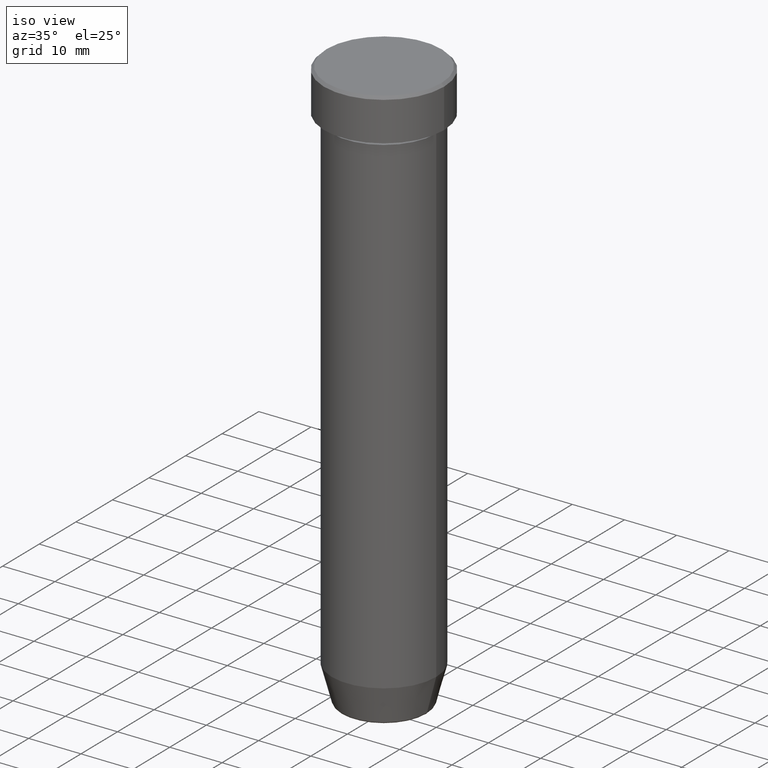
[diagram: clean part render]
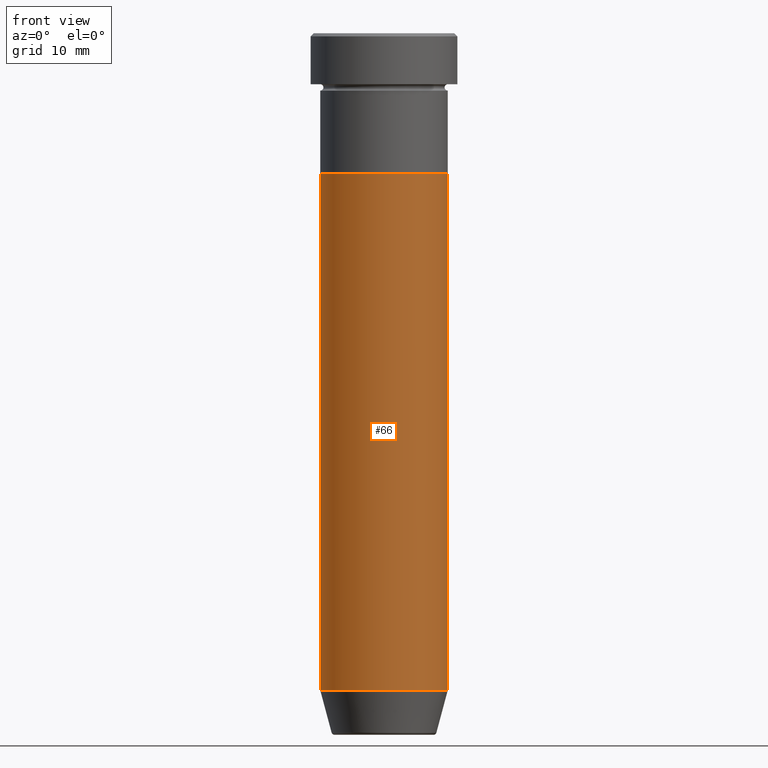
[diagram: tour spotlight — one face highlighted and labeled with its STEP entity id]
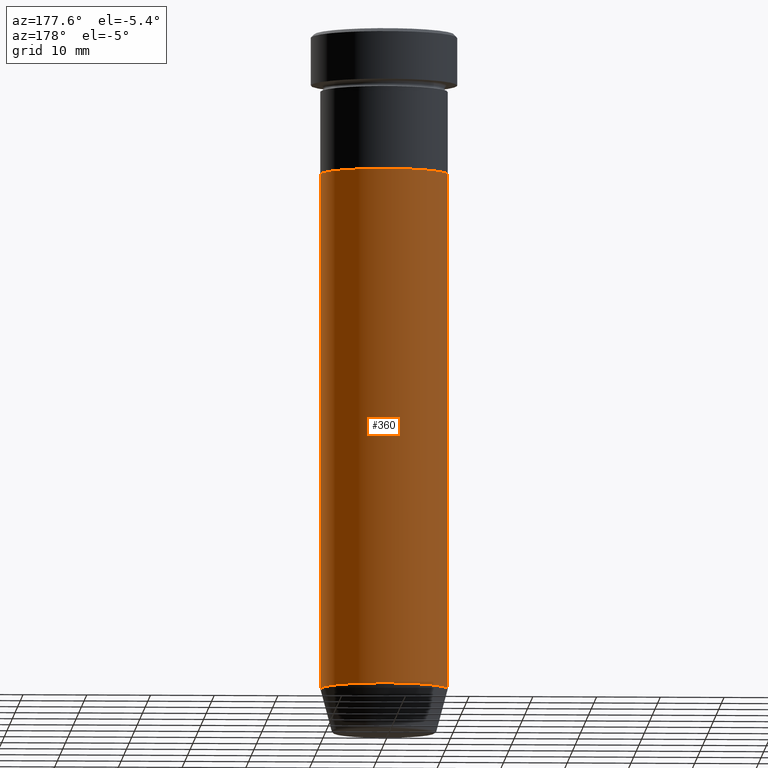
[diagram: tour spotlight — one face highlighted and labeled with its STEP entity id]
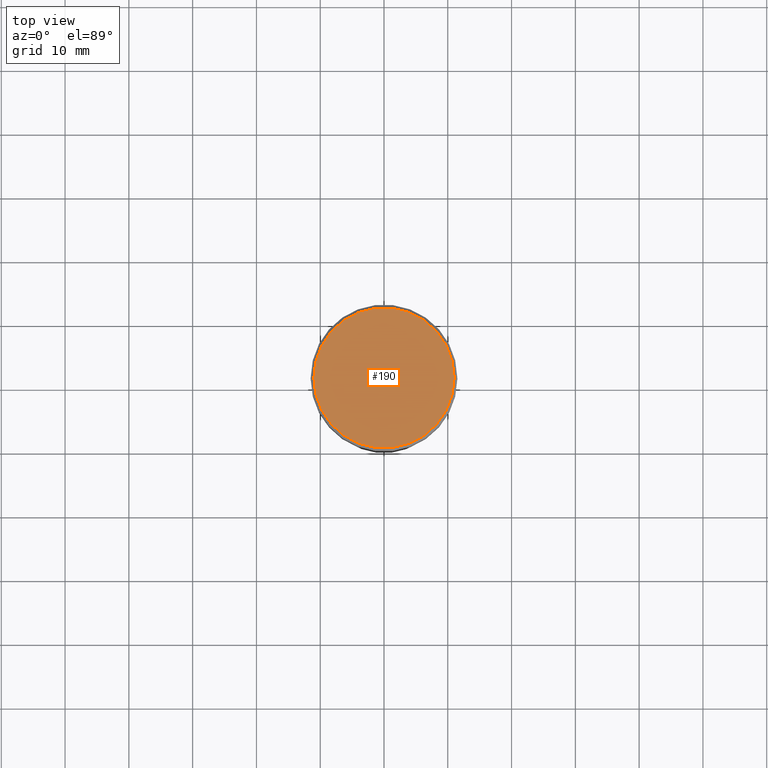
[diagram: tour spotlight — one face highlighted and labeled with its STEP entity id]
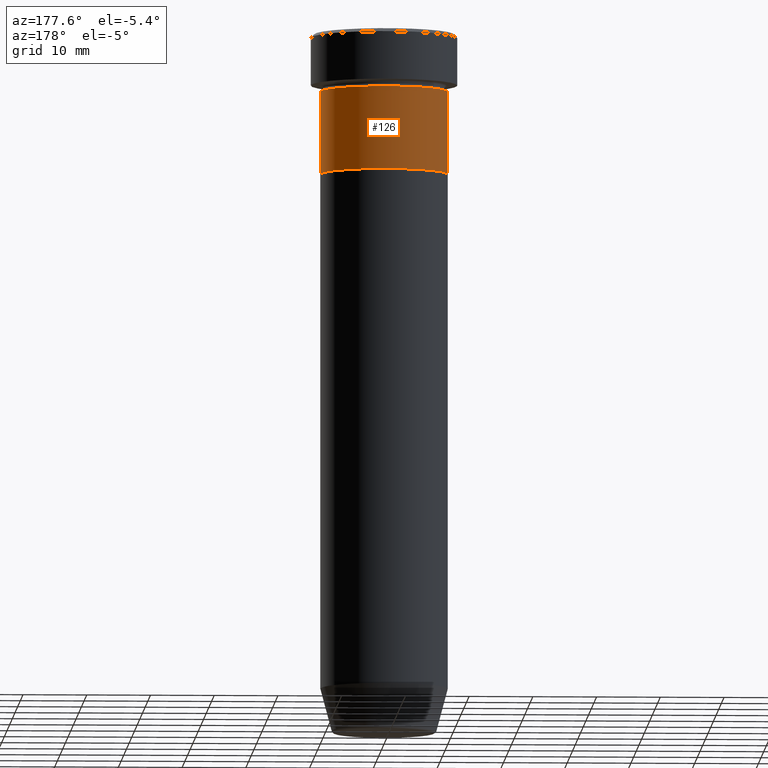
[diagram: tour spotlight — one face highlighted and labeled with its STEP entity id]
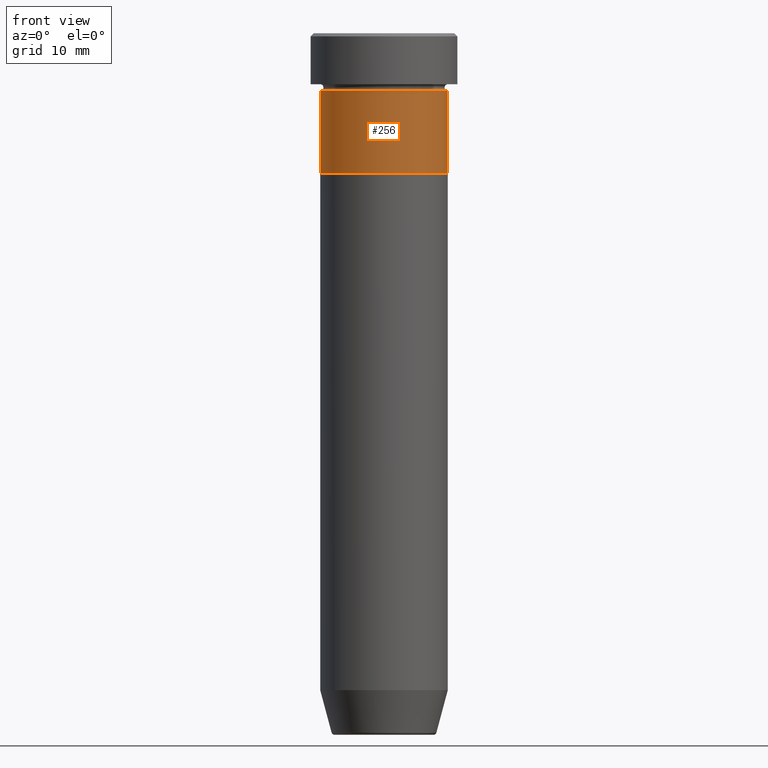
[diagram: tour spotlight — one face highlighted and labeled with its STEP entity id]
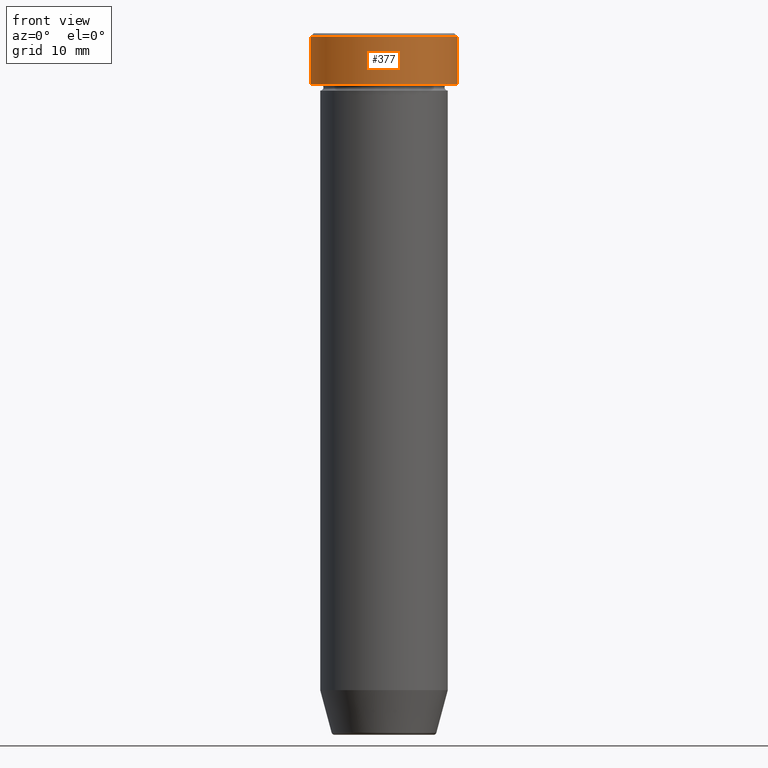
[diagram: tour spotlight — one face highlighted and labeled with its STEP entity id]
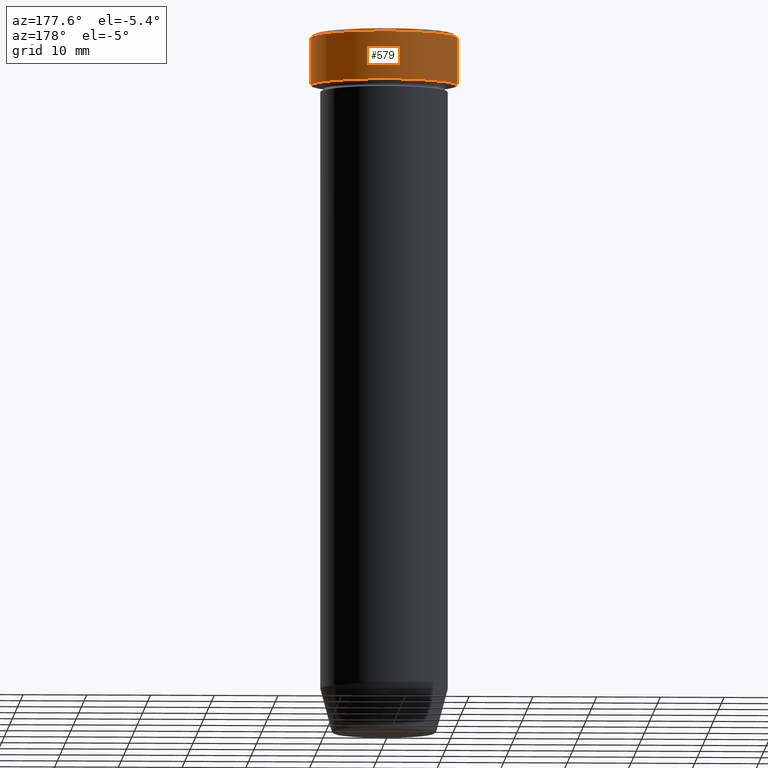
[diagram: tour spotlight — one face highlighted and labeled with its STEP entity id]
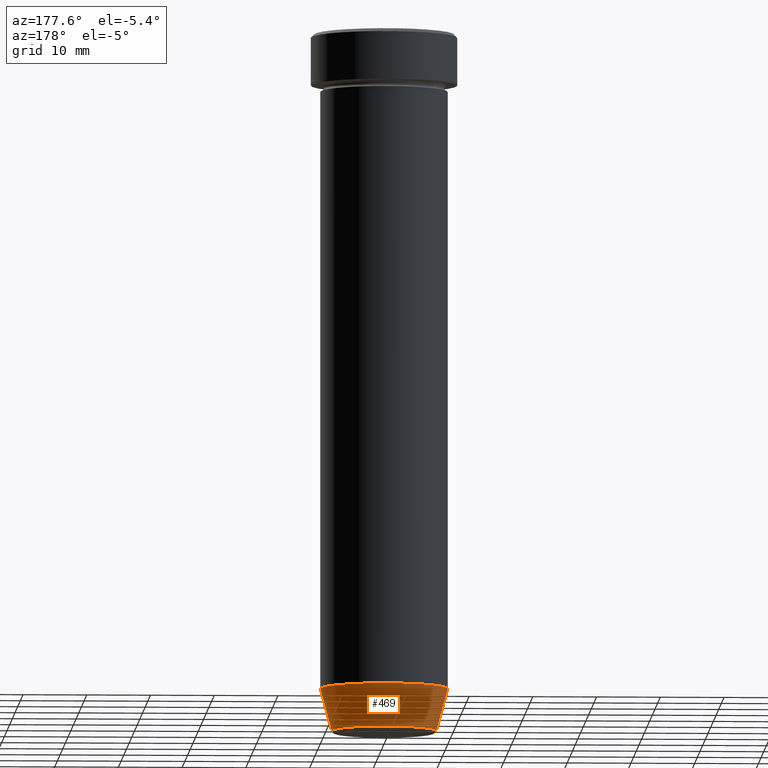
[diagram: tour spotlight — one face highlighted and labeled with its STEP entity id]
A machine part: a face-by-face anatomy tour. The part has 21 B-rep faces; the first image is the clean iso view, then the 8 largest visible faces are spotlighted one at a time (largest first), each with its STEP entity span.

Face 1 — front view, entity #66. In plain terms, the highlighted cylindrical surface (partial cylindrical patch) has radius 10 mm, axis along (-0, -0, 1).
Definition (entity closure, byte-faithful):
#22 = EDGE_CURVE ( 'NONE', #51, #410, #153, .T. ) ;
#51 = VERTEX_POINT ( 'NONE', #308 ) ;
#66 = ADVANCED_FACE ( 'NONE', ( #176 ), #547, .T. ) ;
#86 = VERTEX_POINT ( 'NONE', #408 ) ;
#106 = ORIENTED_EDGE ( 'NONE', *, *, #22, .T. ) ;
#117 = CARTESIAN_POINT ( 'NONE',  ( 10.00000000000000000, 0.000000000000000000, 0.000000000000000000 ) ) ;
#129 = EDGE_LOOP ( 'NONE', ( #460, #106, #276, #457 ) ) ;
#130 = DIRECTION ( 'NONE',  ( -0.000000000000000000, -0.000000000000000000, 1.000000000000000000 ) ) ;
#153 = CIRCLE ( 'NONE', #369, 10.00000000000000000 ) ;
#165 = DIRECTION ( 'NONE',  ( 1.000000000000000000, 0.000000000000000000, 0.000000000000000000 ) ) ;
#169 = DIRECTION ( 'NONE',  ( -0.000000000000000000, -0.000000000000000000, 1.000000000000000000 ) ) ;
#176 = FACE_OUTER_BOUND ( 'NONE', #129, .T. ) ;
#185 = VECTOR ( 'NONE', #318, 1000.000000000000000 ) ;
#212 = DIRECTION ( 'NONE',  ( -0.000000000000000000, -0.000000000000000000, 1.000000000000000000 ) ) ;
#223 = CIRCLE ( 'NONE', #277, 10.00000000000000000 ) ;
#229 = AXIS2_PLACEMENT_3D ( 'NONE', #321, #501, #508 ) ;
#241 = EDGE_CURVE ( 'NONE', #410, #514, #446, .T. ) ;
#246 = EDGE_CURVE ( 'NONE', #86, #514, #223, .T. ) ;
#276 = ORIENTED_EDGE ( 'NONE', *, *, #241, .T. ) ;
#277 = AXIS2_PLACEMENT_3D ( 'NONE', #430, #212, #394 ) ;
#308 = CARTESIAN_POINT ( 'NONE',  ( -10.00000000000000000, 1.224646799147353256E-15, -102.9999999999999858 ) ) ;
#318 = DIRECTION ( 'NONE',  ( -0.000000000000000000, -0.000000000000000000, 1.000000000000000000 ) ) ;
#321 = CARTESIAN_POINT ( 'NONE',  ( 0.000000000000000000, 0.000000000000000000, 0.000000000000000000 ) ) ;
#369 = AXIS2_PLACEMENT_3D ( 'NONE', #447, #169, #165 ) ;
#389 = EDGE_CURVE ( 'NONE', #51, #86, #444, .T. ) ;
#394 = DIRECTION ( 'NONE',  ( 1.000000000000000000, 0.000000000000000000, 0.000000000000000000 ) ) ;
#408 = CARTESIAN_POINT ( 'NONE',  ( -10.00000000000000000, 1.224646799147353256E-15, -22.00000000000000000 ) ) ;
#410 = VERTEX_POINT ( 'NONE', #589 ) ;
#430 = CARTESIAN_POINT ( 'NONE',  ( 0.000000000000000000, 0.000000000000000000, -22.00000000000000000 ) ) ;
#437 = CARTESIAN_POINT ( 'NONE',  ( -10.00000000000000000, 1.224646799147353256E-15, 0.000000000000000000 ) ) ;
#444 = LINE ( 'NONE', #437, #185 ) ;
#446 = LINE ( 'NONE', #117, #588 ) ;
#447 = CARTESIAN_POINT ( 'NONE',  ( 0.000000000000000000, 0.000000000000000000, -102.9999999999999858 ) ) ;
#457 = ORIENTED_EDGE ( 'NONE', *, *, #246, .F. ) ;
#460 = ORIENTED_EDGE ( 'NONE', *, *, #389, .F. ) ;
#492 = CARTESIAN_POINT ( 'NONE',  ( 10.00000000000000000, 0.000000000000000000, -22.00000000000000000 ) ) ;
#501 = DIRECTION ( 'NONE',  ( -0.000000000000000000, -0.000000000000000000, 1.000000000000000000 ) ) ;
#508 = DIRECTION ( 'NONE',  ( 1.000000000000000000, 0.000000000000000000, 0.000000000000000000 ) ) ;
#514 = VERTEX_POINT ( 'NONE', #492 ) ;
#547 = CYLINDRICAL_SURFACE ( 'NONE', #229, 10.00000000000000000 ) ;
#588 = VECTOR ( 'NONE', #130, 1000.000000000000000 ) ;
#589 = CARTESIAN_POINT ( 'NONE',  ( 10.00000000000000000, 0.000000000000000000, -102.9999999999999858 ) ) ;

Face 2 — auxiliary view, entity #360. In plain terms, the highlighted cylindrical surface (partial cylindrical patch) has radius 10 mm, axis along (-0, -0, 1).
Definition (entity closure, byte-faithful):
#29 = DIRECTION ( 'NONE',  ( 1.000000000000000000, 0.000000000000000000, 0.000000000000000000 ) ) ;
#37 = EDGE_LOOP ( 'NONE', ( #191, #545, #553, #548 ) ) ;
#51 = VERTEX_POINT ( 'NONE', #308 ) ;
#54 = AXIS2_PLACEMENT_3D ( 'NONE', #264, #443, #29 ) ;
#86 = VERTEX_POINT ( 'NONE', #408 ) ;
#88 = CARTESIAN_POINT ( 'NONE',  ( 0.000000000000000000, 0.000000000000000000, 0.000000000000000000 ) ) ;
#95 = CYLINDRICAL_SURFACE ( 'NONE', #186, 10.00000000000000000 ) ;
#117 = CARTESIAN_POINT ( 'NONE',  ( 10.00000000000000000, 0.000000000000000000, 0.000000000000000000 ) ) ;
#123 = AXIS2_PLACEMENT_3D ( 'NONE', #170, #483, #433 ) ;
#130 = DIRECTION ( 'NONE',  ( -0.000000000000000000, -0.000000000000000000, 1.000000000000000000 ) ) ;
#170 = CARTESIAN_POINT ( 'NONE',  ( 0.000000000000000000, 0.000000000000000000, -102.9999999999999858 ) ) ;
#185 = VECTOR ( 'NONE', #318, 1000.000000000000000 ) ;
#186 = AXIS2_PLACEMENT_3D ( 'NONE', #88, #378, #235 ) ;
#191 = ORIENTED_EDGE ( 'NONE', *, *, #427, .T. ) ;
#235 = DIRECTION ( 'NONE',  ( 1.000000000000000000, 0.000000000000000000, 0.000000000000000000 ) ) ;
#241 = EDGE_CURVE ( 'NONE', #410, #514, #446, .T. ) ;
#264 = CARTESIAN_POINT ( 'NONE',  ( 0.000000000000000000, 0.000000000000000000, -22.00000000000000000 ) ) ;
#308 = CARTESIAN_POINT ( 'NONE',  ( -10.00000000000000000, 1.224646799147353256E-15, -102.9999999999999858 ) ) ;
#318 = DIRECTION ( 'NONE',  ( -0.000000000000000000, -0.000000000000000000, 1.000000000000000000 ) ) ;
#353 = EDGE_CURVE ( 'NONE', #514, #86, #551, .T. ) ;
#360 = ADVANCED_FACE ( 'NONE', ( #585 ), #95, .T. ) ;
#378 = DIRECTION ( 'NONE',  ( -0.000000000000000000, -0.000000000000000000, 1.000000000000000000 ) ) ;
#385 = CIRCLE ( 'NONE', #123, 10.00000000000000000 ) ;
#389 = EDGE_CURVE ( 'NONE', #51, #86, #444, .T. ) ;
#408 = CARTESIAN_POINT ( 'NONE',  ( -10.00000000000000000, 1.224646799147353256E-15, -22.00000000000000000 ) ) ;
#410 = VERTEX_POINT ( 'NONE', #589 ) ;
#427 = EDGE_CURVE ( 'NONE', #410, #51, #385, .T. ) ;
#433 = DIRECTION ( 'NONE',  ( 1.000000000000000000, 0.000000000000000000, 0.000000000000000000 ) ) ;
#437 = CARTESIAN_POINT ( 'NONE',  ( -10.00000000000000000, 1.224646799147353256E-15, 0.000000000000000000 ) ) ;
#443 = DIRECTION ( 'NONE',  ( -0.000000000000000000, -0.000000000000000000, 1.000000000000000000 ) ) ;
#444 = LINE ( 'NONE', #437, #185 ) ;
#446 = LINE ( 'NONE', #117, #588 ) ;
#483 = DIRECTION ( 'NONE',  ( -0.000000000000000000, -0.000000000000000000, 1.000000000000000000 ) ) ;
#492 = CARTESIAN_POINT ( 'NONE',  ( 10.00000000000000000, 0.000000000000000000, -22.00000000000000000 ) ) ;
#514 = VERTEX_POINT ( 'NONE', #492 ) ;
#545 = ORIENTED_EDGE ( 'NONE', *, *, #389, .T. ) ;
#548 = ORIENTED_EDGE ( 'NONE', *, *, #241, .F. ) ;
#551 = CIRCLE ( 'NONE', #54, 10.00000000000000000 ) ;
#553 = ORIENTED_EDGE ( 'NONE', *, *, #353, .F. ) ;
#585 = FACE_OUTER_BOUND ( 'NONE', #37, .T. ) ;
#588 = VECTOR ( 'NONE', #130, 1000.000000000000000 ) ;
#589 = CARTESIAN_POINT ( 'NONE',  ( 10.00000000000000000, 0.000000000000000000, -102.9999999999999858 ) ) ;

Face 3 — top view, entity #190. In plain terms, the highlighted planar face has unit normal (0, -0, 1).
Definition (entity closure, byte-faithful):
#17 = AXIS2_PLACEMENT_3D ( 'NONE', #109, #175, #354 ) ;
#18 = DIRECTION ( 'NONE',  ( 1.000000000000000000, 0.000000000000000000, 0.000000000000000000 ) ) ;
#38 = EDGE_LOOP ( 'NONE', ( #455, #381 ) ) ;
#109 = CARTESIAN_POINT ( 'NONE',  ( 0.000000000000000000, 0.000000000000000000, 0.000000000000000000 ) ) ;
#142 = VERTEX_POINT ( 'NONE', #202 ) ;
#150 = EDGE_CURVE ( 'NONE', #270, #142, #434, .T. ) ;
#175 = DIRECTION ( 'NONE',  ( -0.000000000000000000, -0.000000000000000000, 1.000000000000000000 ) ) ;
#190 = ADVANCED_FACE ( 'NONE', ( #574 ), #387, .T. ) ;
#202 = CARTESIAN_POINT ( 'NONE',  ( -11.00000000000000000, 0.000000000000000000, 0.000000000000000000 ) ) ;
#236 = EDGE_CURVE ( 'NONE', #142, #270, #362, .T. ) ;
#270 = VERTEX_POINT ( 'NONE', #320 ) ;
#286 = CARTESIAN_POINT ( 'NONE',  ( 0.000000000000000000, 0.000000000000000000, 0.000000000000000000 ) ) ;
#288 = AXIS2_PLACEMENT_3D ( 'NONE', #523, #519, #475 ) ;
#320 = CARTESIAN_POINT ( 'NONE',  ( 11.00000000000000000, 1.377727649040772389E-15, 0.000000000000000000 ) ) ;
#337 = DIRECTION ( 'NONE',  ( -0.000000000000000000, -0.000000000000000000, 1.000000000000000000 ) ) ;
#354 = DIRECTION ( 'NONE',  ( 1.000000000000000000, 0.000000000000000000, 0.000000000000000000 ) ) ;
#362 = CIRCLE ( 'NONE', #17, 11.00000000000000000 ) ;
#381 = ORIENTED_EDGE ( 'NONE', *, *, #150, .T. ) ;
#387 = PLANE ( 'NONE',  #288 ) ;
#434 = CIRCLE ( 'NONE', #466, 11.00000000000000000 ) ;
#455 = ORIENTED_EDGE ( 'NONE', *, *, #236, .T. ) ;
#466 = AXIS2_PLACEMENT_3D ( 'NONE', #286, #337, #18 ) ;
#475 = DIRECTION ( 'NONE',  ( 1.000000000000000000, 0.000000000000000000, 0.000000000000000000 ) ) ;
#519 = DIRECTION ( 'NONE',  ( 0.000000000000000000, -0.000000000000000000, 1.000000000000000000 ) ) ;
#523 = CARTESIAN_POINT ( 'NONE',  ( 0.000000000000000000, 0.000000000000000000, 0.000000000000000000 ) ) ;
#574 = FACE_OUTER_BOUND ( 'NONE', #38, .T. ) ;

Face 4 — auxiliary view, entity #126. In plain terms, the highlighted cylindrical surface (partial cylindrical patch) has radius 10 mm, axis along (-0, -0, 1).
Definition (entity closure, byte-faithful):
#13 = CARTESIAN_POINT ( 'NONE',  ( 10.00000000000000000, 0.000000000000000000, 0.000000000000000000 ) ) ;
#19 = DIRECTION ( 'NONE',  ( -0.000000000000000000, -0.000000000000000000, 1.000000000000000000 ) ) ;
#43 = ORIENTED_EDGE ( 'NONE', *, *, #554, .F. ) ;
#49 = DIRECTION ( 'NONE',  ( -0.000000000000000000, -0.000000000000000000, 1.000000000000000000 ) ) ;
#57 = CARTESIAN_POINT ( 'NONE',  ( 0.000000000000000000, 0.000000000000000000, 0.000000000000000000 ) ) ;
#63 = DIRECTION ( 'NONE',  ( 1.000000000000000000, 0.000000000000000000, 0.000000000000000000 ) ) ;
#64 = ORIENTED_EDGE ( 'NONE', *, *, #453, .T. ) ;
#96 = VERTEX_POINT ( 'NONE', #143 ) ;
#126 = ADVANCED_FACE ( 'NONE', ( #148 ), #423, .T. ) ;
#141 = EDGE_CURVE ( 'NONE', #263, #521, #471, .T. ) ;
#143 = CARTESIAN_POINT ( 'NONE',  ( -10.00000000000000000, 1.224646799147353256E-15, -9.000000000000001776 ) ) ;
#148 = FACE_OUTER_BOUND ( 'NONE', #517, .T. ) ;
#158 = DIRECTION ( 'NONE',  ( -0.000000000000000000, -0.000000000000000000, 1.000000000000000000 ) ) ;
#162 = AXIS2_PLACEMENT_3D ( 'NONE', #214, #542, #63 ) ;
#178 = CARTESIAN_POINT ( 'NONE',  ( 0.000000000000000000, 0.000000000000000000, -9.000000000000001776 ) ) ;
#183 = CARTESIAN_POINT ( 'NONE',  ( -10.00000000000000000, 1.224646799147353256E-15, 0.000000000000000000 ) ) ;
#208 = ORIENTED_EDGE ( 'NONE', *, *, #141, .F. ) ;
#211 = VECTOR ( 'NONE', #19, 1000.000000000000000 ) ;
#214 = CARTESIAN_POINT ( 'NONE',  ( 0.000000000000000000, 0.000000000000000000, -22.00000000000000000 ) ) ;
#254 = CARTESIAN_POINT ( 'NONE',  ( -10.00000000000000000, 1.224646799147353256E-15, -22.00000000000000000 ) ) ;
#263 = VERTEX_POINT ( 'NONE', #307 ) ;
#268 = VECTOR ( 'NONE', #49, 1000.000000000000000 ) ;
#307 = CARTESIAN_POINT ( 'NONE',  ( 10.00000000000000000, 0.000000000000000000, -22.00000000000000000 ) ) ;
#312 = AXIS2_PLACEMENT_3D ( 'NONE', #178, #592, #322 ) ;
#322 = DIRECTION ( 'NONE',  ( 1.000000000000000000, 0.000000000000000000, 0.000000000000000000 ) ) ;
#368 = AXIS2_PLACEMENT_3D ( 'NONE', #57, #158, #564 ) ;
#370 = EDGE_CURVE ( 'NONE', #445, #96, #406, .T. ) ;
#379 = CIRCLE ( 'NONE', #162, 10.00000000000000000 ) ;
#406 = LINE ( 'NONE', #183, #268 ) ;
#423 = CYLINDRICAL_SURFACE ( 'NONE', #368, 10.00000000000000000 ) ;
#445 = VERTEX_POINT ( 'NONE', #254 ) ;
#453 = EDGE_CURVE ( 'NONE', #263, #445, #379, .T. ) ;
#471 = LINE ( 'NONE', #13, #211 ) ;
#513 = CIRCLE ( 'NONE', #312, 10.00000000000000000 ) ;
#517 = EDGE_LOOP ( 'NONE', ( #64, #530, #43, #208 ) ) ;
#521 = VERTEX_POINT ( 'NONE', #538 ) ;
#530 = ORIENTED_EDGE ( 'NONE', *, *, #370, .T. ) ;
#538 = CARTESIAN_POINT ( 'NONE',  ( 10.00000000000000000, 0.000000000000000000, -9.000000000000001776 ) ) ;
#542 = DIRECTION ( 'NONE',  ( -0.000000000000000000, -0.000000000000000000, 1.000000000000000000 ) ) ;
#554 = EDGE_CURVE ( 'NONE', #521, #96, #513, .T. ) ;
#564 = DIRECTION ( 'NONE',  ( 1.000000000000000000, 0.000000000000000000, 0.000000000000000000 ) ) ;
#592 = DIRECTION ( 'NONE',  ( -0.000000000000000000, -0.000000000000000000, 1.000000000000000000 ) ) ;

Face 5 — front view, entity #256. In plain terms, the highlighted cylindrical surface (partial cylindrical patch) has radius 10 mm, axis along (-0, -0, 1).
Definition (entity closure, byte-faithful):
#3 = DIRECTION ( 'NONE',  ( -0.000000000000000000, -0.000000000000000000, 1.000000000000000000 ) ) ;
#13 = CARTESIAN_POINT ( 'NONE',  ( 10.00000000000000000, 0.000000000000000000, 0.000000000000000000 ) ) ;
#19 = DIRECTION ( 'NONE',  ( -0.000000000000000000, -0.000000000000000000, 1.000000000000000000 ) ) ;
#28 = DIRECTION ( 'NONE',  ( -0.000000000000000000, -0.000000000000000000, 1.000000000000000000 ) ) ;
#46 = CARTESIAN_POINT ( 'NONE',  ( 0.000000000000000000, 0.000000000000000000, -9.000000000000001776 ) ) ;
#49 = DIRECTION ( 'NONE',  ( -0.000000000000000000, -0.000000000000000000, 1.000000000000000000 ) ) ;
#72 = CARTESIAN_POINT ( 'NONE',  ( 0.000000000000000000, 0.000000000000000000, -22.00000000000000000 ) ) ;
#96 = VERTEX_POINT ( 'NONE', #143 ) ;
#101 = ORIENTED_EDGE ( 'NONE', *, *, #141, .T. ) ;
#141 = EDGE_CURVE ( 'NONE', #263, #521, #471, .T. ) ;
#143 = CARTESIAN_POINT ( 'NONE',  ( -10.00000000000000000, 1.224646799147353256E-15, -9.000000000000001776 ) ) ;
#183 = CARTESIAN_POINT ( 'NONE',  ( -10.00000000000000000, 1.224646799147353256E-15, 0.000000000000000000 ) ) ;
#211 = VECTOR ( 'NONE', #19, 1000.000000000000000 ) ;
#245 = EDGE_LOOP ( 'NONE', ( #338, #555, #101, #303 ) ) ;
#254 = CARTESIAN_POINT ( 'NONE',  ( -10.00000000000000000, 1.224646799147353256E-15, -22.00000000000000000 ) ) ;
#256 = ADVANCED_FACE ( 'NONE', ( #497 ), #543, .T. ) ;
#263 = VERTEX_POINT ( 'NONE', #307 ) ;
#268 = VECTOR ( 'NONE', #49, 1000.000000000000000 ) ;
#282 = EDGE_CURVE ( 'NONE', #445, #263, #311, .T. ) ;
#303 = ORIENTED_EDGE ( 'NONE', *, *, #537, .F. ) ;
#307 = CARTESIAN_POINT ( 'NONE',  ( 10.00000000000000000, 0.000000000000000000, -22.00000000000000000 ) ) ;
#311 = CIRCLE ( 'NONE', #341, 10.00000000000000000 ) ;
#329 = DIRECTION ( 'NONE',  ( 1.000000000000000000, 0.000000000000000000, 0.000000000000000000 ) ) ;
#338 = ORIENTED_EDGE ( 'NONE', *, *, #370, .F. ) ;
#341 = AXIS2_PLACEMENT_3D ( 'NONE', #72, #28, #399 ) ;
#370 = EDGE_CURVE ( 'NONE', #445, #96, #406, .T. ) ;
#380 = AXIS2_PLACEMENT_3D ( 'NONE', #46, #3, #329 ) ;
#399 = DIRECTION ( 'NONE',  ( 1.000000000000000000, 0.000000000000000000, 0.000000000000000000 ) ) ;
#406 = LINE ( 'NONE', #183, #268 ) ;
#445 = VERTEX_POINT ( 'NONE', #254 ) ;
#471 = LINE ( 'NONE', #13, #211 ) ;
#497 = FACE_OUTER_BOUND ( 'NONE', #245, .T. ) ;
#520 = AXIS2_PLACEMENT_3D ( 'NONE', #536, #533, #546 ) ;
#521 = VERTEX_POINT ( 'NONE', #538 ) ;
#533 = DIRECTION ( 'NONE',  ( -0.000000000000000000, -0.000000000000000000, 1.000000000000000000 ) ) ;
#536 = CARTESIAN_POINT ( 'NONE',  ( 0.000000000000000000, 0.000000000000000000, 0.000000000000000000 ) ) ;
#537 = EDGE_CURVE ( 'NONE', #96, #521, #569, .T. ) ;
#538 = CARTESIAN_POINT ( 'NONE',  ( 10.00000000000000000, 0.000000000000000000, -9.000000000000001776 ) ) ;
#543 = CYLINDRICAL_SURFACE ( 'NONE', #520, 10.00000000000000000 ) ;
#546 = DIRECTION ( 'NONE',  ( 1.000000000000000000, 0.000000000000000000, 0.000000000000000000 ) ) ;
#555 = ORIENTED_EDGE ( 'NONE', *, *, #282, .T. ) ;
#569 = CIRCLE ( 'NONE', #380, 10.00000000000000000 ) ;

Face 6 — front view, entity #377. In plain terms, the highlighted cylindrical surface (partial cylindrical patch) has radius 11.5 mm, axis along (-0, -0, 1).
Definition (entity closure, byte-faithful):
#1 = CARTESIAN_POINT ( 'NONE',  ( 11.50000000000000000, 0.000000000000000000, 0.000000000000000000 ) ) ;
#10 = DIRECTION ( 'NONE',  ( 1.000000000000000000, 0.000000000000000000, 0.000000000000000000 ) ) ;
#44 = VECTOR ( 'NONE', #139, 1000.000000000000000 ) ;
#68 = LINE ( 'NONE', #110, #459 ) ;
#69 = CARTESIAN_POINT ( 'NONE',  ( 0.000000000000000000, 0.000000000000000000, -8.000000000000000000 ) ) ;
#93 = CIRCLE ( 'NONE', #195, 11.50000000000000000 ) ;
#94 = EDGE_CURVE ( 'NONE', #284, #316, #556, .T. ) ;
#104 = AXIS2_PLACEMENT_3D ( 'NONE', #69, #487, #209 ) ;
#110 = CARTESIAN_POINT ( 'NONE',  ( -11.50000000000000000, 1.408343819019456176E-15, 0.000000000000000000 ) ) ;
#120 = CARTESIAN_POINT ( 'NONE',  ( 11.50000000000000000, 0.000000000000000000, -0.5000000000000073275 ) ) ;
#125 = ORIENTED_EDGE ( 'NONE', *, *, #291, .T. ) ;
#139 = DIRECTION ( 'NONE',  ( -0.000000000000000000, -0.000000000000000000, 1.000000000000000000 ) ) ;
#144 = CIRCLE ( 'NONE', #104, 11.50000000000000000 ) ;
#152 = ORIENTED_EDGE ( 'NONE', *, *, #94, .T. ) ;
#195 = AXIS2_PLACEMENT_3D ( 'NONE', #363, #599, #461 ) ;
#196 = CARTESIAN_POINT ( 'NONE',  ( 0.000000000000000000, 0.000000000000000000, 0.000000000000000000 ) ) ;
#209 = DIRECTION ( 'NONE',  ( 1.000000000000000000, 0.000000000000000000, 0.000000000000000000 ) ) ;
#228 = VERTEX_POINT ( 'NONE', #294 ) ;
#243 = DIRECTION ( 'NONE',  ( -0.000000000000000000, -0.000000000000000000, 1.000000000000000000 ) ) ;
#265 = ORIENTED_EDGE ( 'NONE', *, *, #442, .F. ) ;
#284 = VERTEX_POINT ( 'NONE', #484 ) ;
#291 = EDGE_CURVE ( 'NONE', #228, #284, #144, .T. ) ;
#293 = FACE_OUTER_BOUND ( 'NONE', #591, .T. ) ;
#294 = CARTESIAN_POINT ( 'NONE',  ( -11.50000000000000000, 1.408343819019456176E-15, -8.000000000000000000 ) ) ;
#316 = VERTEX_POINT ( 'NONE', #120 ) ;
#328 = VERTEX_POINT ( 'NONE', #396 ) ;
#363 = CARTESIAN_POINT ( 'NONE',  ( 0.000000000000000000, 0.000000000000000000, -0.5000000000000073275 ) ) ;
#377 = ADVANCED_FACE ( 'NONE', ( #293 ), #473, .T. ) ;
#396 = CARTESIAN_POINT ( 'NONE',  ( -11.50000000000000000, 1.408343819019456176E-15, -0.5000000000000073275 ) ) ;
#441 = DIRECTION ( 'NONE',  ( -0.000000000000000000, -0.000000000000000000, 1.000000000000000000 ) ) ;
#442 = EDGE_CURVE ( 'NONE', #228, #328, #68, .T. ) ;
#454 = ORIENTED_EDGE ( 'NONE', *, *, #597, .T. ) ;
#459 = VECTOR ( 'NONE', #441, 1000.000000000000000 ) ;
#461 = DIRECTION ( 'NONE',  ( 1.000000000000000000, 0.000000000000000000, 0.000000000000000000 ) ) ;
#473 = CYLINDRICAL_SURFACE ( 'NONE', #594, 11.50000000000000000 ) ;
#484 = CARTESIAN_POINT ( 'NONE',  ( 11.50000000000000000, 0.000000000000000000, -8.000000000000000000 ) ) ;
#487 = DIRECTION ( 'NONE',  ( -0.000000000000000000, -0.000000000000000000, 1.000000000000000000 ) ) ;
#556 = LINE ( 'NONE', #1, #44 ) ;
#591 = EDGE_LOOP ( 'NONE', ( #265, #125, #152, #454 ) ) ;
#594 = AXIS2_PLACEMENT_3D ( 'NONE', #196, #243, #10 ) ;
#597 = EDGE_CURVE ( 'NONE', #316, #328, #93, .T. ) ;
#599 = DIRECTION ( 'NONE',  ( 0.000000000000000000, 0.000000000000000000, -1.000000000000000000 ) ) ;

Face 7 — auxiliary view, entity #579. In plain terms, the highlighted cylindrical surface (partial cylindrical patch) has radius 11.5 mm, axis along (-0, -0, 1).
Definition (entity closure, byte-faithful):
#1 = CARTESIAN_POINT ( 'NONE',  ( 11.50000000000000000, 0.000000000000000000, 0.000000000000000000 ) ) ;
#44 = VECTOR ( 'NONE', #139, 1000.000000000000000 ) ;
#68 = LINE ( 'NONE', #110, #459 ) ;
#71 = CARTESIAN_POINT ( 'NONE',  ( 0.000000000000000000, 0.000000000000000000, -8.000000000000000000 ) ) ;
#92 = DIRECTION ( 'NONE',  ( -0.000000000000000000, -0.000000000000000000, 1.000000000000000000 ) ) ;
#94 = EDGE_CURVE ( 'NONE', #284, #316, #556, .T. ) ;
#110 = CARTESIAN_POINT ( 'NONE',  ( -11.50000000000000000, 1.408343819019456176E-15, 0.000000000000000000 ) ) ;
#120 = CARTESIAN_POINT ( 'NONE',  ( 11.50000000000000000, 0.000000000000000000, -0.5000000000000073275 ) ) ;
#122 = ORIENTED_EDGE ( 'NONE', *, *, #94, .F. ) ;
#137 = CARTESIAN_POINT ( 'NONE',  ( 0.000000000000000000, 0.000000000000000000, 0.000000000000000000 ) ) ;
#138 = ORIENTED_EDGE ( 'NONE', *, *, #442, .T. ) ;
#139 = DIRECTION ( 'NONE',  ( -0.000000000000000000, -0.000000000000000000, 1.000000000000000000 ) ) ;
#151 = DIRECTION ( 'NONE',  ( 1.000000000000000000, 0.000000000000000000, 0.000000000000000000 ) ) ;
#177 = EDGE_CURVE ( 'NONE', #328, #316, #424, .T. ) ;
#180 = DIRECTION ( 'NONE',  ( 1.000000000000000000, 0.000000000000000000, 0.000000000000000000 ) ) ;
#200 = CARTESIAN_POINT ( 'NONE',  ( 0.000000000000000000, 0.000000000000000000, -0.5000000000000073275 ) ) ;
#213 = AXIS2_PLACEMENT_3D ( 'NONE', #137, #92, #180 ) ;
#228 = VERTEX_POINT ( 'NONE', #294 ) ;
#231 = AXIS2_PLACEMENT_3D ( 'NONE', #200, #568, #151 ) ;
#257 = DIRECTION ( 'NONE',  ( 1.000000000000000000, 0.000000000000000000, 0.000000000000000000 ) ) ;
#284 = VERTEX_POINT ( 'NONE', #484 ) ;
#294 = CARTESIAN_POINT ( 'NONE',  ( -11.50000000000000000, 1.408343819019456176E-15, -8.000000000000000000 ) ) ;
#316 = VERTEX_POINT ( 'NONE', #120 ) ;
#326 = CYLINDRICAL_SURFACE ( 'NONE', #213, 11.50000000000000000 ) ;
#328 = VERTEX_POINT ( 'NONE', #396 ) ;
#356 = DIRECTION ( 'NONE',  ( -0.000000000000000000, -0.000000000000000000, 1.000000000000000000 ) ) ;
#365 = ORIENTED_EDGE ( 'NONE', *, *, #500, .T. ) ;
#388 = EDGE_LOOP ( 'NONE', ( #365, #138, #583, #122 ) ) ;
#396 = CARTESIAN_POINT ( 'NONE',  ( -11.50000000000000000, 1.408343819019456176E-15, -0.5000000000000073275 ) ) ;
#402 = FACE_OUTER_BOUND ( 'NONE', #388, .T. ) ;
#424 = CIRCLE ( 'NONE', #231, 11.50000000000000000 ) ;
#441 = DIRECTION ( 'NONE',  ( -0.000000000000000000, -0.000000000000000000, 1.000000000000000000 ) ) ;
#442 = EDGE_CURVE ( 'NONE', #228, #328, #68, .T. ) ;
#459 = VECTOR ( 'NONE', #441, 1000.000000000000000 ) ;
#467 = AXIS2_PLACEMENT_3D ( 'NONE', #71, #356, #257 ) ;
#484 = CARTESIAN_POINT ( 'NONE',  ( 11.50000000000000000, 0.000000000000000000, -8.000000000000000000 ) ) ;
#500 = EDGE_CURVE ( 'NONE', #284, #228, #577, .T. ) ;
#556 = LINE ( 'NONE', #1, #44 ) ;
#568 = DIRECTION ( 'NONE',  ( 0.000000000000000000, 0.000000000000000000, -1.000000000000000000 ) ) ;
#577 = CIRCLE ( 'NONE', #467, 11.50000000000000000 ) ;
#579 = ADVANCED_FACE ( 'NONE', ( #402 ), #326, .T. ) ;
#583 = ORIENTED_EDGE ( 'NONE', *, *, #177, .T. ) ;

Face 8 — auxiliary view, entity #469. In plain terms, the highlighted conical surface has half-angle 15 deg.
Definition (entity closure, byte-faithful):
#20 = FACE_OUTER_BOUND ( 'NONE', #575, .T. ) ;
#34 = CIRCLE ( 'NONE', #45, 8.223655072137187716 ) ;
#45 = AXIS2_PLACEMENT_3D ( 'NONE', #528, #163, #217 ) ;
#51 = VERTEX_POINT ( 'NONE', #308 ) ;
#76 = ORIENTED_EDGE ( 'NONE', *, *, #85, .T. ) ;
#78 = DIRECTION ( 'NONE',  ( 1.000000000000000000, 0.000000000000000000, 0.000000000000000000 ) ) ;
#85 = EDGE_CURVE ( 'NONE', #440, #51, #239, .T. ) ;
#123 = AXIS2_PLACEMENT_3D ( 'NONE', #170, #483, #433 ) ;
#155 = VECTOR ( 'NONE', #479, 1000.000000000000000 ) ;
#163 = DIRECTION ( 'NONE',  ( -0.000000000000000000, -0.000000000000000000, 1.000000000000000000 ) ) ;
#170 = CARTESIAN_POINT ( 'NONE',  ( 0.000000000000000000, 0.000000000000000000, -102.9999999999999858 ) ) ;
#217 = DIRECTION ( 'NONE',  ( -1.000000000000000000, 0.000000000000000000, 0.000000000000000000 ) ) ;
#230 = CARTESIAN_POINT ( 'NONE',  ( -8.124355652982135467, 9.949466145559276583E-16, -109.9999999999999858 ) ) ;
#239 = LINE ( 'NONE', #230, #412 ) ;
#242 = AXIS2_PLACEMENT_3D ( 'NONE', #306, #576, #78 ) ;
#306 = CARTESIAN_POINT ( 'NONE',  ( 0.000000000000000000, 0.000000000000000000, -109.9999999999999858 ) ) ;
#308 = CARTESIAN_POINT ( 'NONE',  ( -10.00000000000000000, 1.224646799147353256E-15, -102.9999999999999858 ) ) ;
#331 = VERTEX_POINT ( 'NONE', #584 ) ;
#355 = CARTESIAN_POINT ( 'NONE',  ( 8.124355652982135467, 0.000000000000000000, -109.9999999999999858 ) ) ;
#385 = CIRCLE ( 'NONE', #123, 10.00000000000000000 ) ;
#401 = EDGE_CURVE ( 'NONE', #331, #440, #34, .T. ) ;
#410 = VERTEX_POINT ( 'NONE', #589 ) ;
#412 = VECTOR ( 'NONE', #516, 1000.000000000000000 ) ;
#416 = ORIENTED_EDGE ( 'NONE', *, *, #420, .F. ) ;
#420 = EDGE_CURVE ( 'NONE', #331, #410, #532, .T. ) ;
#427 = EDGE_CURVE ( 'NONE', #410, #51, #385, .T. ) ;
#433 = DIRECTION ( 'NONE',  ( 1.000000000000000000, 0.000000000000000000, 0.000000000000000000 ) ) ;
#440 = VERTEX_POINT ( 'NONE', #535 ) ;
#451 = ORIENTED_EDGE ( 'NONE', *, *, #427, .F. ) ;
#462 = ORIENTED_EDGE ( 'NONE', *, *, #401, .T. ) ;
#469 = ADVANCED_FACE ( 'NONE', ( #20 ), #504, .T. ) ;
#479 = DIRECTION ( 'NONE',  ( 0.2588190451025213501, 0.000000000000000000, 0.9659258262890680902 ) ) ;
#483 = DIRECTION ( 'NONE',  ( -0.000000000000000000, -0.000000000000000000, 1.000000000000000000 ) ) ;
#504 = CONICAL_SURFACE ( 'NONE', #242, 8.124355652982135467, 0.2617993877991500740 ) ;
#516 = DIRECTION ( 'NONE',  ( -0.2588190451025213501, 3.169619151431772337E-17, 0.9659258262890680902 ) ) ;
#528 = CARTESIAN_POINT ( 'NONE',  ( 0.000000000000000000, 0.000000000000000000, -109.6294095225512564 ) ) ;
#532 = LINE ( 'NONE', #355, #155 ) ;
#535 = CARTESIAN_POINT ( 'NONE',  ( -8.223655072137187716, 1.115877042642911856E-15, -109.6294095225512564 ) ) ;
#575 = EDGE_LOOP ( 'NONE', ( #462, #76, #451, #416 ) ) ;
#576 = DIRECTION ( 'NONE',  ( -0.000000000000000000, -0.000000000000000000, 1.000000000000000000 ) ) ;
#584 = CARTESIAN_POINT ( 'NONE',  ( 8.223655072137187716, 0.000000000000000000, -109.6294095225512564 ) ) ;
#589 = CARTESIAN_POINT ( 'NONE',  ( 10.00000000000000000, 0.000000000000000000, -102.9999999999999858 ) ) ;